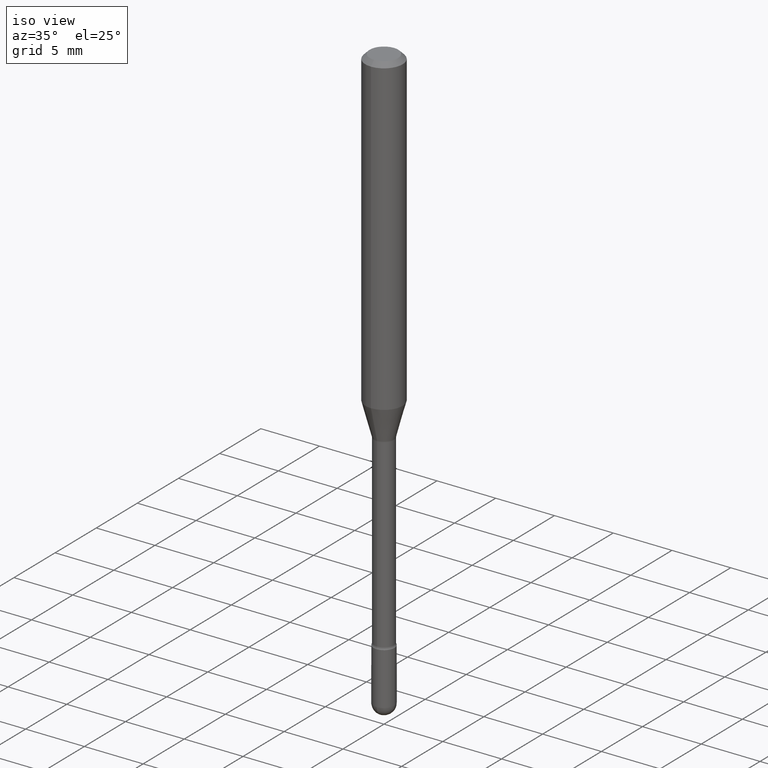
[diagram: clean part render]
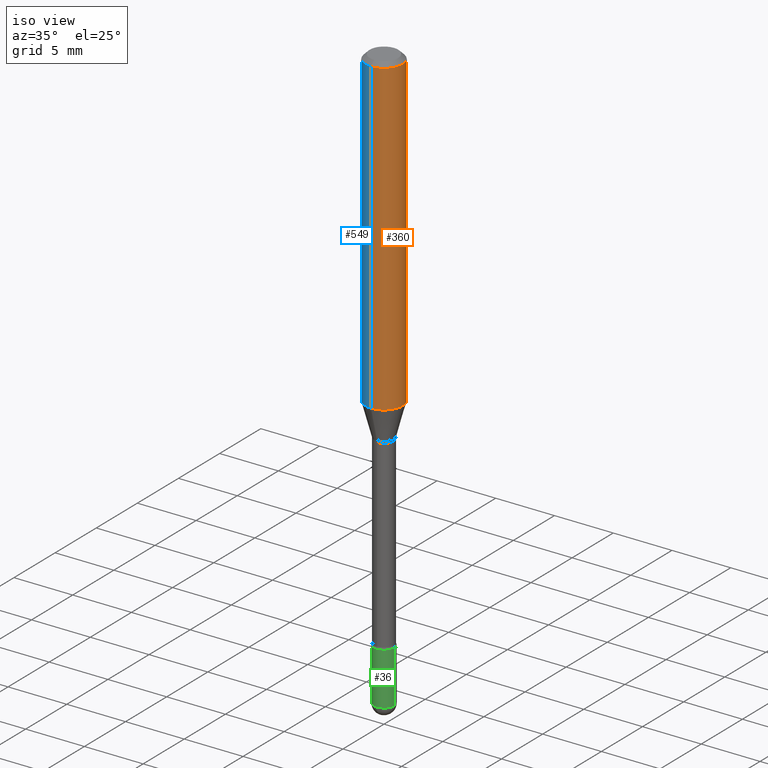
[diagram: same view with three faces highlighted in distinct colors, each labeled with its STEP entity id]
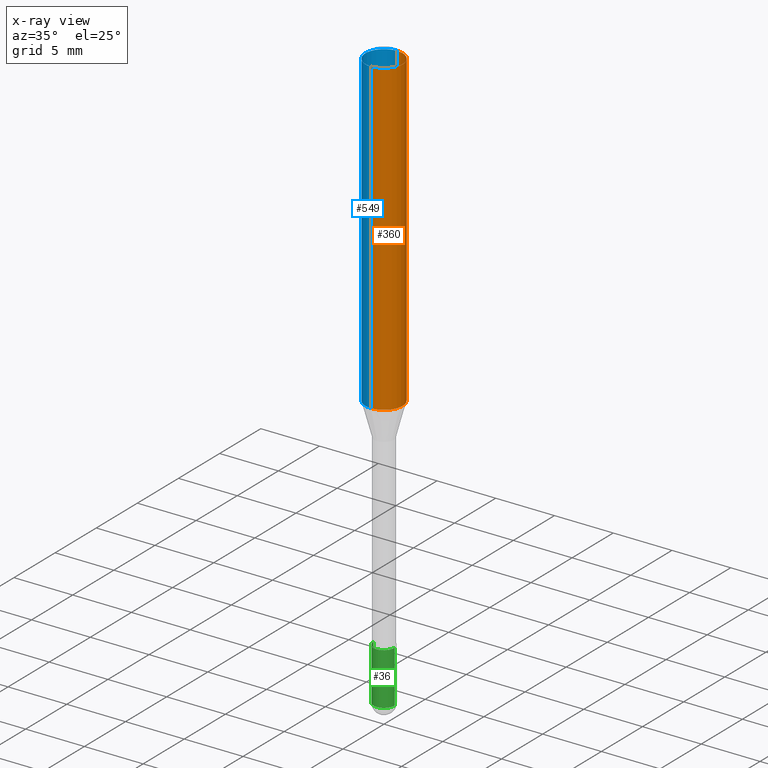
[diagram: x-ray of the same camera — body ghosted, the three highlighted faces saturated]
A machine part, iso view with three faces highlighted in distinct colors.
The next image is the same camera in x-ray (body ghosted, the three faces saturated) — at least one of them is partly hidden behind the body in this view.
Their STEP definitions:

[orange] entity #360 — the highlighted cylindrical surface (edge-blend (fillet) strip) has radius 1.5875 mm, axis along (-0, 0, 1).
#13 = FACE_OUTER_BOUND ( 'NONE', #479, .T. ) ;
#23 = VERTEX_POINT ( 'NONE', #253 ) ;
#24 = CARTESIAN_POINT ( 'NONE',  ( 2.566609944677887031E-29, -3.664399030748884908E-15, -1.049531296095961519 ) ) ;
#28 = CARTESIAN_POINT ( 'NONE',  ( 4.440892098500625669E-16, 0.06250000000000000000, 2.598570005106255658E-16 ) ) ;
#30 = EDGE_CURVE ( 'NONE', #23, #349, #259, .T. ) ;
#34 = EDGE_CURVE ( 'NONE', #47, #342, #505, .T. ) ;
#47 = VERTEX_POINT ( 'NONE', #478 ) ;
#54 = CIRCLE ( 'NONE', #474, 0.06250000000000000000 ) ;
#65 = DIRECTION ( 'NONE',  ( -2.445482049201527511E-29, 3.491462374089927960E-15, 1.000000000000000000 ) ) ;
#73 = DIRECTION ( 'NONE',  ( -6.982962677686265922E-15, -1.000000000000000000, 4.370956789862821150E-15 ) ) ;
#81 = AXIS2_PLACEMENT_3D ( 'NONE', #24, #463, #73 ) ;
#110 = VECTOR ( 'NONE', #171, 39.37007874015748143 ) ;
#117 = DIRECTION ( 'NONE',  ( -6.982962677686265922E-15, -1.000000000000000000, 3.483106191921935554E-15 ) ) ;
#118 = CARTESIAN_POINT ( 'NONE',  ( -4.364351673553916201E-16, -0.06250000000000000000, 6.962897972718665114E-16 ) ) ;
#171 = DIRECTION ( 'NONE',  ( -2.445482049201527511E-29, 3.491462374089927960E-15, 1.000000000000000000 ) ) ;
#177 = AXIS2_PLACEMENT_3D ( 'NONE', #454, #65, #542 ) ;
#229 = CARTESIAN_POINT ( 'NONE',  ( -4.364351673553912750E-16, -0.06250000000000005551, -0.01499999999999986587 ) ) ;
#253 = CARTESIAN_POINT ( 'NONE',  ( 4.440892098500882541E-16, 0.06249999999999633626, -1.049531296095961741 ) ) ;
#259 = LINE ( 'NONE', #28, #110 ) ;
#290 = CYLINDRICAL_SURFACE ( 'NONE', #177, 0.06250000000000000000 ) ;
#300 = DIRECTION ( 'NONE',  ( -2.445482049201527511E-29, 3.491462374089927960E-15, 1.000000000000000000 ) ) ;
#301 = CIRCLE ( 'NONE', #81, 0.06250000000000000000 ) ;
#313 = CARTESIAN_POINT ( 'NONE',  ( 3.668223073802311533E-31, -5.237193561134920955E-17, -0.01500000000000008271 ) ) ;
#321 = ORIENTED_EDGE ( 'NONE', *, *, #380, .F. ) ;
#342 = VERTEX_POINT ( 'NONE', #229 ) ;
#349 = VERTEX_POINT ( 'NONE', #357 ) ;
#357 = CARTESIAN_POINT ( 'NONE',  ( 4.440892098500883528E-16, 0.06249999999999993755, -0.01500000000000030129 ) ) ;
#359 = ORIENTED_EDGE ( 'NONE', *, *, #30, .T. ) ;
#360 = ADVANCED_FACE ( 'NONE', ( #13 ), #290, .T. ) ;
#380 = EDGE_CURVE ( 'NONE', #342, #349, #54, .T. ) ;
#397 = EDGE_CURVE ( 'NONE', #47, #23, #301, .T. ) ;
#404 = ORIENTED_EDGE ( 'NONE', *, *, #34, .F. ) ;
#426 = VECTOR ( 'NONE', #300, 39.37007874015748143 ) ;
#443 = DIRECTION ( 'NONE',  ( -2.445482049201527511E-29, 3.491462374089927960E-15, 1.000000000000000000 ) ) ;
#448 = ORIENTED_EDGE ( 'NONE', *, *, #397, .T. ) ;
#454 = CARTESIAN_POINT ( 'NONE',  ( -1.169113584055446105E-44, 1.669184350826100908E-30, 4.780733988912460139E-16 ) ) ;
#463 = DIRECTION ( 'NONE',  ( -2.445482049201527511E-29, 3.491462374089927960E-15, 1.000000000000000000 ) ) ;
#474 = AXIS2_PLACEMENT_3D ( 'NONE', #313, #443, #117 ) ;
#478 = CARTESIAN_POINT ( 'NONE',  ( -4.364351673553658835E-16, -0.06250000000000366374, -1.049531296095961297 ) ) ;
#479 = EDGE_LOOP ( 'NONE', ( #448, #359, #321, #404 ) ) ;
#505 = LINE ( 'NONE', #118, #426 ) ;
#542 = DIRECTION ( 'NONE',  ( -6.982962677686265922E-15, -1.000000000000000000, 3.491462374089927171E-15 ) ) ;

[blue] entity #549 — the highlighted cylindrical surface (edge-blend (fillet) strip) has radius 1.5875 mm, axis along (-0, 0, 1).
#22 = AXIS2_PLACEMENT_3D ( 'NONE', #517, #133, #272 ) ;
#23 = VERTEX_POINT ( 'NONE', #253 ) ;
#28 = CARTESIAN_POINT ( 'NONE',  ( 4.440892098500625669E-16, 0.06250000000000000000, 2.598570005106255658E-16 ) ) ;
#30 = EDGE_CURVE ( 'NONE', #23, #349, #259, .T. ) ;
#34 = EDGE_CURVE ( 'NONE', #47, #342, #505, .T. ) ;
#35 = EDGE_LOOP ( 'NONE', ( #107, #51, #100, #537 ) ) ;
#42 = DIRECTION ( 'NONE',  ( -6.982962677686265922E-15, -1.000000000000000000, 3.483106191921935554E-15 ) ) ;
#47 = VERTEX_POINT ( 'NONE', #478 ) ;
#51 = ORIENTED_EDGE ( 'NONE', *, *, #128, .T. ) ;
#63 = CIRCLE ( 'NONE', #202, 0.06250000000000000000 ) ;
#100 = ORIENTED_EDGE ( 'NONE', *, *, #34, .T. ) ;
#107 = ORIENTED_EDGE ( 'NONE', *, *, #30, .F. ) ;
#110 = VECTOR ( 'NONE', #171, 39.37007874015748143 ) ;
#118 = CARTESIAN_POINT ( 'NONE',  ( -4.364351673553916201E-16, -0.06250000000000000000, 6.962897972718665114E-16 ) ) ;
#128 = EDGE_CURVE ( 'NONE', #23, #47, #414, .T. ) ;
#133 = DIRECTION ( 'NONE',  ( -2.445482049201527511E-29, 3.491462374089927960E-15, 1.000000000000000000 ) ) ;
#154 = CARTESIAN_POINT ( 'NONE',  ( -1.169113584055446105E-44, 1.669184350826100908E-30, 4.780733988912460139E-16 ) ) ;
#171 = DIRECTION ( 'NONE',  ( -2.445482049201527511E-29, 3.491462374089927960E-15, 1.000000000000000000 ) ) ;
#182 = DIRECTION ( 'NONE',  ( -2.445482049201527511E-29, 3.491462374089927960E-15, 1.000000000000000000 ) ) ;
#202 = AXIS2_PLACEMENT_3D ( 'NONE', #566, #182, #42 ) ;
#210 = AXIS2_PLACEMENT_3D ( 'NONE', #154, #486, #534 ) ;
#229 = CARTESIAN_POINT ( 'NONE',  ( -4.364351673553912750E-16, -0.06250000000000005551, -0.01499999999999986587 ) ) ;
#238 = FACE_OUTER_BOUND ( 'NONE', #35, .T. ) ;
#241 = CYLINDRICAL_SURFACE ( 'NONE', #210, 0.06250000000000000000 ) ;
#253 = CARTESIAN_POINT ( 'NONE',  ( 4.440892098500882541E-16, 0.06249999999999633626, -1.049531296095961741 ) ) ;
#259 = LINE ( 'NONE', #28, #110 ) ;
#272 = DIRECTION ( 'NONE',  ( -6.982962677686265922E-15, -1.000000000000000000, 4.370956789862821150E-15 ) ) ;
#300 = DIRECTION ( 'NONE',  ( -2.445482049201527511E-29, 3.491462374089927960E-15, 1.000000000000000000 ) ) ;
#342 = VERTEX_POINT ( 'NONE', #229 ) ;
#349 = VERTEX_POINT ( 'NONE', #357 ) ;
#357 = CARTESIAN_POINT ( 'NONE',  ( 4.440892098500883528E-16, 0.06249999999999993755, -0.01500000000000030129 ) ) ;
#414 = CIRCLE ( 'NONE', #22, 0.06250000000000000000 ) ;
#426 = VECTOR ( 'NONE', #300, 39.37007874015748143 ) ;
#475 = EDGE_CURVE ( 'NONE', #349, #342, #63, .T. ) ;
#478 = CARTESIAN_POINT ( 'NONE',  ( -4.364351673553658835E-16, -0.06250000000000366374, -1.049531296095961297 ) ) ;
#486 = DIRECTION ( 'NONE',  ( -2.445482049201527511E-29, 3.491462374089927960E-15, 1.000000000000000000 ) ) ;
#505 = LINE ( 'NONE', #118, #426 ) ;
#517 = CARTESIAN_POINT ( 'NONE',  ( 2.566609944677887031E-29, -3.664399030748884908E-15, -1.049531296095961519 ) ) ;
#534 = DIRECTION ( 'NONE',  ( -6.982962677686265922E-15, -1.000000000000000000, 3.491462374089927171E-15 ) ) ;
#537 = ORIENTED_EDGE ( 'NONE', *, *, #475, .F. ) ;
#549 = ADVANCED_FACE ( 'NONE', ( #238 ), #241, .T. ) ;
#566 = CARTESIAN_POINT ( 'NONE',  ( 3.668223073802311533E-31, -5.237193561134920955E-17, -0.01500000000000008271 ) ) ;

[green] entity #36 — the highlighted cylindrical surface (edge-blend (fillet) strip) has radius 0.889 mm, axis along (-0, 0, 1).
#5 = CARTESIAN_POINT ( 'NONE',  ( -0.03500000000000000333, 2.486899575160350887E-16, -1.721627281589217108E-30 ) ) ;
#36 = ADVANCED_FACE ( 'NONE', ( #72 ), #282, .T. ) ;
#38 = DIRECTION ( 'NONE',  ( -2.445468806185136597E-29, 3.491481338843145583E-15, 1.000000000000000000 ) ) ;
#44 = VERTEX_POINT ( 'NONE', #186 ) ;
#50 = DIRECTION ( 'NONE',  ( 1.000000000000000000, -6.982962677686276966E-15, 0.000000000000000000 ) ) ;
#59 = VERTEX_POINT ( 'NONE', #86 ) ;
#60 = EDGE_CURVE ( 'NONE', #318, #243, #126, .T. ) ;
#72 = FACE_OUTER_BOUND ( 'NONE', #97, .T. ) ;
#77 = EDGE_CURVE ( 'NONE', #44, #318, #194, .T. ) ;
#86 = CARTESIAN_POINT ( 'NONE',  ( 0.03500000000000000333, -6.799659907397025402E-15, -1.964999999999999858 ) ) ;
#92 = DIRECTION ( 'NONE',  ( -2.445468806185136597E-29, 3.491481338843145583E-15, 1.000000000000000000 ) ) ;
#97 = EDGE_LOOP ( 'NONE', ( #180, #297, #231, #501, #104 ) ) ;
#104 = ORIENTED_EDGE ( 'NONE', *, *, #60, .F. ) ;
#123 = DIRECTION ( 'NONE',  ( 1.000000000000000000, -6.982962677686276966E-15, 0.000000000000000000 ) ) ;
#126 = CIRCLE ( 'NONE', #461, 0.03500000000000000333 ) ;
#141 = AXIS2_PLACEMENT_3D ( 'NONE', #176, #292, #123 ) ;
#163 = LINE ( 'NONE', #214, #237 ) ;
#176 = CARTESIAN_POINT ( 'NONE',  ( 4.805346204153793345E-29, -6.860760830826780393E-15, -1.964999999999999858 ) ) ;
#180 = ORIENTED_EDGE ( 'NONE', *, *, #77, .F. ) ;
#185 = DIRECTION ( 'NONE',  ( 1.000000000000000000, -6.982962677686276966E-15, 0.000000000000000000 ) ) ;
#186 = CARTESIAN_POINT ( 'NONE',  ( -0.03500000000000000333, -6.306566256161970939E-15, -1.964999999999999858 ) ) ;
#194 = LINE ( 'NONE', #5, #444 ) ;
#214 = CARTESIAN_POINT ( 'NONE',  ( 0.03500000000000000333, -2.444036937190193250E-16, 1.706661871528577808E-30 ) ) ;
#231 = ORIENTED_EDGE ( 'NONE', *, *, #491, .T. ) ;
#233 = DIRECTION ( 'NONE',  ( -2.445468806185136877E-29, 3.491481338843145188E-15, 1.000000000000000000 ) ) ;
#237 = VECTOR ( 'NONE', #497, 39.37007874015748143 ) ;
#243 = VERTEX_POINT ( 'NONE', #329 ) ;
#267 = CARTESIAN_POINT ( 'NONE',  ( -0.03500000000000000333, -6.306566256161970939E-15, -1.790000000000000036 ) ) ;
#280 = CIRCLE ( 'NONE', #141, 0.03500000000000000333 ) ;
#282 = CYLINDRICAL_SURFACE ( 'NONE', #299, 0.03500000000000000333 ) ;
#291 = AXIS2_PLACEMENT_3D ( 'NONE', #525, #92, #185 ) ;
#292 = DIRECTION ( 'NONE',  ( -2.445468806185136597E-29, 3.491481338843145583E-15, 1.000000000000000000 ) ) ;
#297 = ORIENTED_EDGE ( 'NONE', *, *, #429, .T. ) ;
#299 = AXIS2_PLACEMENT_3D ( 'NONE', #406, #518, #437 ) ;
#318 = VERTEX_POINT ( 'NONE', #267 ) ;
#329 = CARTESIAN_POINT ( 'NONE',  ( 0.03500000000000000333, -6.494155290248250444E-15, -1.790000000000000036 ) ) ;
#343 = CARTESIAN_POINT ( 'NONE',  ( 4.377389163071394665E-29, -6.249751596529231267E-15, -1.790000000000000036 ) ) ;
#381 = CARTESIAN_POINT ( 'NONE',  ( -2.486899575159870668E-16, -0.03500000000000687284, -1.964999999999999858 ) ) ;
#406 = CARTESIAN_POINT ( 'NONE',  ( 0.000000000000000000, 0.000000000000000000, 0.000000000000000000 ) ) ;
#416 = EDGE_CURVE ( 'NONE', #59, #243, #163, .T. ) ;
#428 = VERTEX_POINT ( 'NONE', #381 ) ;
#429 = EDGE_CURVE ( 'NONE', #44, #428, #280, .T. ) ;
#435 = CIRCLE ( 'NONE', #291, 0.03500000000000000333 ) ;
#437 = DIRECTION ( 'NONE',  ( 1.000000000000000000, -6.982962677686265922E-15, 4.876176775795936353E-29 ) ) ;
#444 = VECTOR ( 'NONE', #233, 39.37007874015748143 ) ;
#461 = AXIS2_PLACEMENT_3D ( 'NONE', #343, #38, #50 ) ;
#491 = EDGE_CURVE ( 'NONE', #428, #59, #435, .T. ) ;
#497 = DIRECTION ( 'NONE',  ( -2.445468806185136877E-29, 3.491481338843145188E-15, 1.000000000000000000 ) ) ;
#501 = ORIENTED_EDGE ( 'NONE', *, *, #416, .T. ) ;
#518 = DIRECTION ( 'NONE',  ( -2.445468806185136597E-29, 3.491481338843145583E-15, 1.000000000000000000 ) ) ;
#525 = CARTESIAN_POINT ( 'NONE',  ( 4.805346204153793345E-29, -6.860760830826780393E-15, -1.964999999999999858 ) ) ;